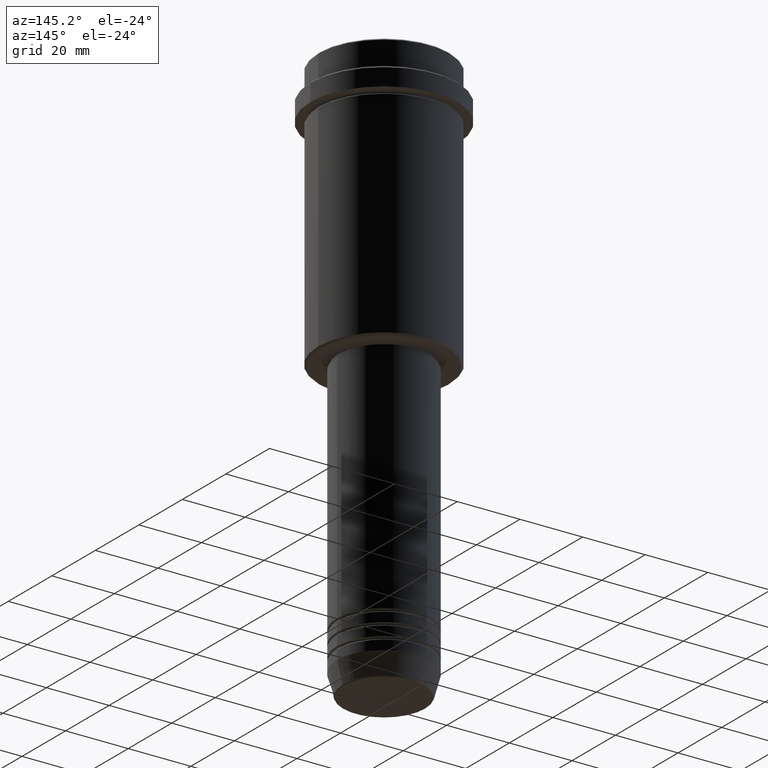
[diagram: clean part render]
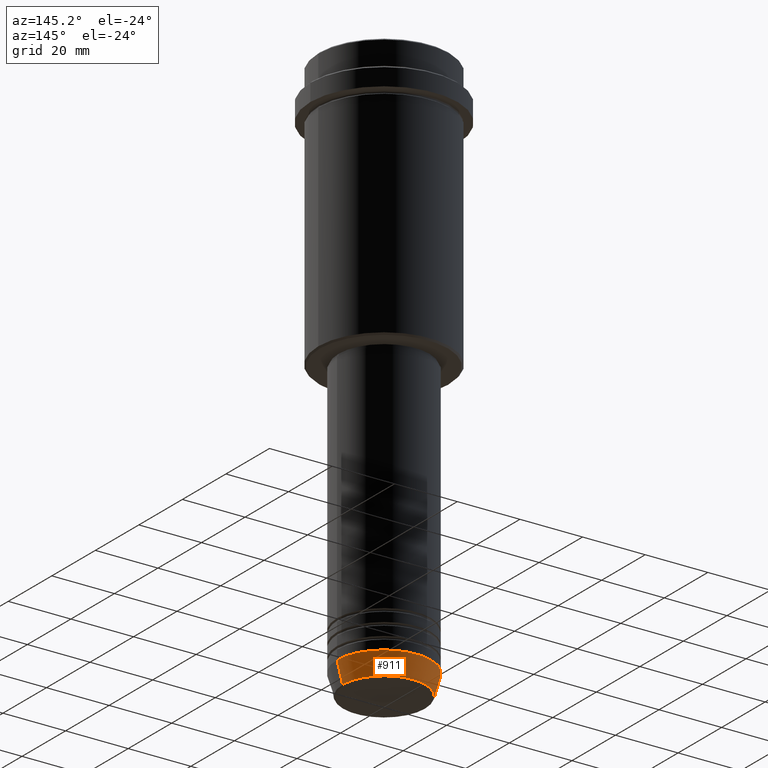
[diagram: same view with one face highlighted and labeled with its STEP entity id]
A machine part, auxiliary view. The second image highlights one B-rep face of the part: STEP entity #911.
In plain terms, the highlighted conical surface has half-angle 15 deg.
Its self-contained STEP definition (entity closure, byte-faithful):
#22 = VECTOR ( 'NONE', #618, 1000.000000000000000 ) ;
#130 = ORIENTED_EDGE ( 'NONE', *, *, #418, .F. ) ;
#162 = ORIENTED_EDGE ( 'NONE', *, *, #314, .F. ) ;
#186 = CARTESIAN_POINT ( 'NONE',  ( -15.00000000000000000, 1.836970198721029589E-15, -173.0000000000000000 ) ) ;
#214 = CIRCLE ( 'NONE', #1047, 13.22365507213719482 ) ;
#254 = AXIS2_PLACEMENT_3D ( 'NONE', #852, #823, #1137 ) ;
#289 = CARTESIAN_POINT ( 'NONE',  ( -15.00000000000000000, 1.836970198721029589E-15, -173.0000000000000000 ) ) ;
#306 = CONICAL_SURFACE ( 'NONE', #728, 15.00000000000000000, 0.2617993877991500740 ) ;
#310 = VERTEX_POINT ( 'NONE', #186 ) ;
#314 = EDGE_CURVE ( 'NONE', #913, #773, #737, .T. ) ;
#402 = EDGE_CURVE ( 'NONE', #666, #310, #1379, .T. ) ;
#418 = EDGE_CURVE ( 'NONE', #773, #310, #1122, .T. ) ;
#531 = CARTESIAN_POINT ( 'NONE',  ( 0.000000000000000000, 0.000000000000000000, -173.0000000000000000 ) ) ;
#618 = DIRECTION ( 'NONE',  ( 0.2588190451025213501, 0.000000000000000000, 0.9659258262890680902 ) ) ;
#666 = VERTEX_POINT ( 'NONE', #1120 ) ;
#728 = AXIS2_PLACEMENT_3D ( 'NONE', #531, #746, #973 ) ;
#737 = LINE ( 'NONE', #938, #22 ) ;
#746 = DIRECTION ( 'NONE',  ( -0.000000000000000000, -0.000000000000000000, 1.000000000000000000 ) ) ;
#767 = EDGE_LOOP ( 'NONE', ( #772, #1169, #130, #162 ) ) ;
#772 = ORIENTED_EDGE ( 'NONE', *, *, #1055, .T. ) ;
#773 = VERTEX_POINT ( 'NONE', #1050 ) ;
#823 = DIRECTION ( 'NONE',  ( -0.000000000000000000, -0.000000000000000000, 1.000000000000000000 ) ) ;
#846 = DIRECTION ( 'NONE',  ( -0.2588190451025213501, 3.169619151431772337E-17, 0.9659258262890680902 ) ) ;
#852 = CARTESIAN_POINT ( 'NONE',  ( 0.000000000000000000, 0.000000000000000000, -173.0000000000000000 ) ) ;
#911 = ADVANCED_FACE ( 'NONE', ( #1096 ), #306, .T. ) ;
#913 = VERTEX_POINT ( 'NONE', #1303 ) ;
#938 = CARTESIAN_POINT ( 'NONE',  ( 15.00000000000000000, 0.000000000000000000, -173.0000000000000000 ) ) ;
#954 = VECTOR ( 'NONE', #846, 1000.000000000000000 ) ;
#973 = DIRECTION ( 'NONE',  ( 1.000000000000000000, 0.000000000000000000, 0.000000000000000000 ) ) ;
#1047 = AXIS2_PLACEMENT_3D ( 'NONE', #1250, #1114, #1325 ) ;
#1050 = CARTESIAN_POINT ( 'NONE',  ( 15.00000000000000000, 0.000000000000000000, -173.0000000000000000 ) ) ;
#1055 = EDGE_CURVE ( 'NONE', #913, #666, #214, .T. ) ;
#1096 = FACE_OUTER_BOUND ( 'NONE', #767, .T. ) ;
#1114 = DIRECTION ( 'NONE',  ( -0.000000000000000000, -0.000000000000000000, 1.000000000000000000 ) ) ;
#1120 = CARTESIAN_POINT ( 'NONE',  ( -13.22365507213719660, 1.728200442216588780E-15, -179.6294095225512422 ) ) ;
#1122 = CIRCLE ( 'NONE', #254, 15.00000000000000000 ) ;
#1137 = DIRECTION ( 'NONE',  ( 1.000000000000000000, 0.000000000000000000, 0.000000000000000000 ) ) ;
#1169 = ORIENTED_EDGE ( 'NONE', *, *, #402, .T. ) ;
#1250 = CARTESIAN_POINT ( 'NONE',  ( 0.000000000000000000, 0.000000000000000000, -179.6294095225512422 ) ) ;
#1303 = CARTESIAN_POINT ( 'NONE',  ( 13.22365507213719482, 0.000000000000000000, -179.6294095225512422 ) ) ;
#1325 = DIRECTION ( 'NONE',  ( 1.000000000000000000, 0.000000000000000000, 0.000000000000000000 ) ) ;
#1379 = LINE ( 'NONE', #289, #954 ) ;